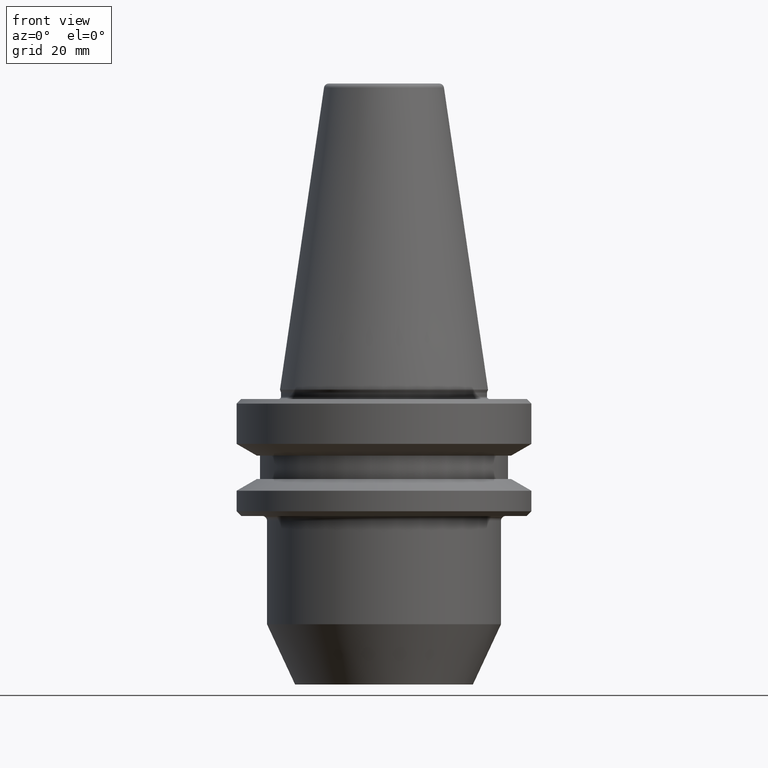
[diagram: clean part render]
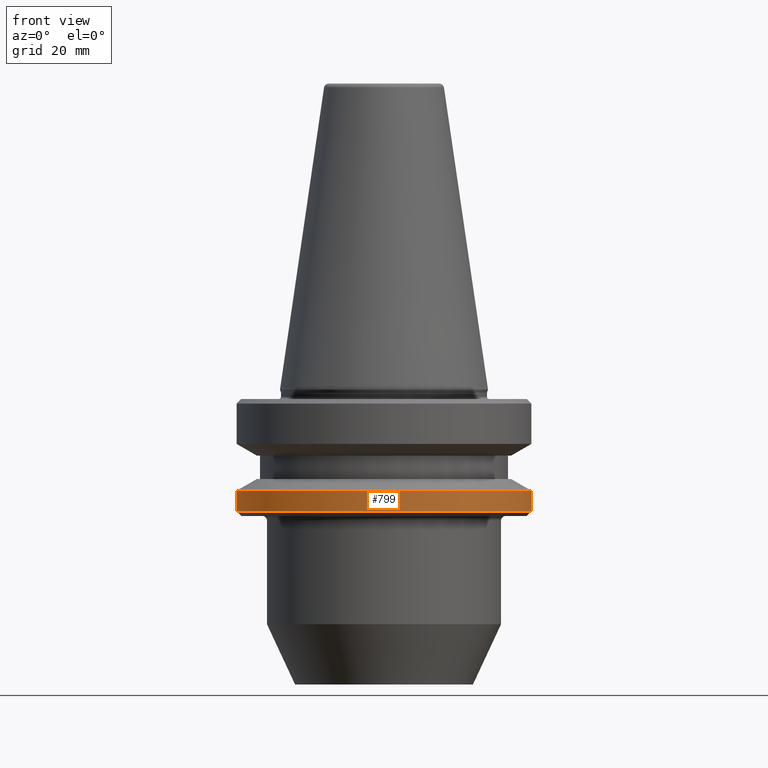
[diagram: same view with one face highlighted and labeled with its STEP entity id]
A machine part, front view. The second image highlights one B-rep face of the part: STEP entity #799.
In plain terms, the highlighted cylindrical surface (partial cylindrical patch) has radius 31.5 mm, axis along (-0, -0, 1).
Its self-contained STEP definition (entity closure, byte-faithful):
#30 = ORIENTED_EDGE ( 'NONE', *, *, #898, .T. ) ;
#34 = AXIS2_PLACEMENT_3D ( 'NONE', #685, #215, #757 ) ;
#45 = CARTESIAN_POINT ( 'NONE',  ( -31.50000000000019500, 3.857637417314186400E-015, -20.91142879476059900 ) ) ;
#64 = AXIS2_PLACEMENT_3D ( 'NONE', #1045, #608, #101 ) ;
#74 = AXIS2_PLACEMENT_3D ( 'NONE', #271, #86, #275 ) ;
#86 = DIRECTION ( 'NONE',  ( -0.0000000000000000000, -0.0000000000000000000, 1.000000000000000000 ) ) ;
#100 = ORIENTED_EDGE ( 'NONE', *, *, #835, .F. ) ;
#101 = DIRECTION ( 'NONE',  ( 1.000000000000000000, 0.0000000000000000000, 0.0000000000000000000 ) ) ;
#123 = VECTOR ( 'NONE', #312, 1000.000000000000000 ) ;
#178 = ORIENTED_EDGE ( 'NONE', *, *, #878, .T. ) ;
#190 = CIRCLE ( 'NONE', #34, 31.50000000000019500 ) ;
#215 = DIRECTION ( 'NONE',  ( -0.0000000000000000000, -0.0000000000000000000, 1.000000000000000000 ) ) ;
#245 = CARTESIAN_POINT ( 'NONE',  ( 31.50000000000019500, 0.0000000000000000000, -20.91142879476059900 ) ) ;
#271 = CARTESIAN_POINT ( 'NONE',  ( 0.0000000000000000000, 0.0000000000000000000, 82.74845858742440900 ) ) ;
#275 = DIRECTION ( 'NONE',  ( 1.000000000000000000, 0.0000000000000000000, 0.0000000000000000000 ) ) ;
#298 = VERTEX_POINT ( 'NONE', #245 ) ;
#312 = DIRECTION ( 'NONE',  ( -0.0000000000000000000, -0.0000000000000000000, 1.000000000000000000 ) ) ;
#328 = CYLINDRICAL_SURFACE ( 'NONE', #74, 31.50000000000019500 ) ;
#449 = LINE ( 'NONE', #1050, #818 ) ;
#463 = CARTESIAN_POINT ( 'NONE',  ( -31.50000000000019500, 3.857637417314186400E-015, -25.31128678844346400 ) ) ;
#475 = CIRCLE ( 'NONE', #64, 31.50000000000019500 ) ;
#536 = DIRECTION ( 'NONE',  ( -0.0000000000000000000, -0.0000000000000000000, 1.000000000000000000 ) ) ;
#597 = ORIENTED_EDGE ( 'NONE', *, *, #979, .F. ) ;
#608 = DIRECTION ( 'NONE',  ( -0.0000000000000000000, -0.0000000000000000000, 1.000000000000000000 ) ) ;
#617 = VERTEX_POINT ( 'NONE', #45 ) ;
#685 = CARTESIAN_POINT ( 'NONE',  ( 0.0000000000000000000, 0.0000000000000000000, -25.31128678844346400 ) ) ;
#731 = FACE_OUTER_BOUND ( 'NONE', #956, .T. ) ;
#742 = LINE ( 'NONE', #932, #123 ) ;
#757 = DIRECTION ( 'NONE',  ( 1.000000000000000000, 0.0000000000000000000, 0.0000000000000000000 ) ) ;
#799 = ADVANCED_FACE ( 'NONE', ( #731 ), #328, .T. ) ;
#818 = VECTOR ( 'NONE', #536, 1000.000000000000000 ) ;
#835 = EDGE_CURVE ( 'NONE', #617, #298, #475, .T. ) ;
#862 = VERTEX_POINT ( 'NONE', #463 ) ;
#878 = EDGE_CURVE ( 'NONE', #1053, #298, #449, .T. ) ;
#898 = EDGE_CURVE ( 'NONE', #862, #1053, #190, .T. ) ;
#932 = CARTESIAN_POINT ( 'NONE',  ( -31.50000000000019500, 3.857637417314186400E-015, 82.74845858742440900 ) ) ;
#939 = CARTESIAN_POINT ( 'NONE',  ( 31.50000000000019500, 0.0000000000000000000, -25.31128678844346400 ) ) ;
#956 = EDGE_LOOP ( 'NONE', ( #597, #30, #178, #100 ) ) ;
#979 = EDGE_CURVE ( 'NONE', #862, #617, #742, .T. ) ;
#1045 = CARTESIAN_POINT ( 'NONE',  ( 0.0000000000000000000, 0.0000000000000000000, -20.91142879476059900 ) ) ;
#1050 = CARTESIAN_POINT ( 'NONE',  ( 31.50000000000019500, 0.0000000000000000000, 82.74845858742440900 ) ) ;
#1053 = VERTEX_POINT ( 'NONE', #939 ) ;